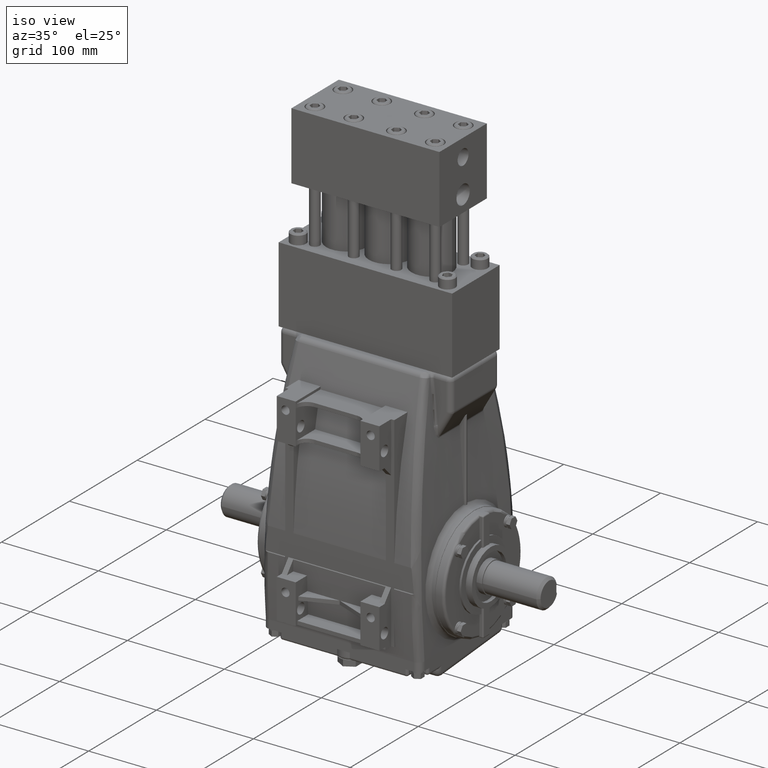
[diagram: clean part render]
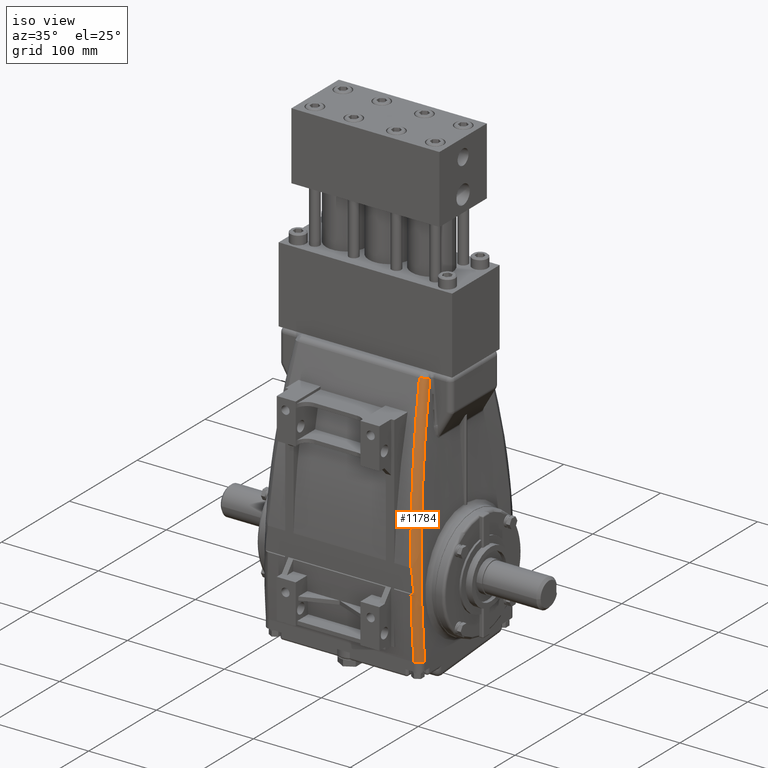
[diagram: same view with one face highlighted and labeled with its STEP entity id]
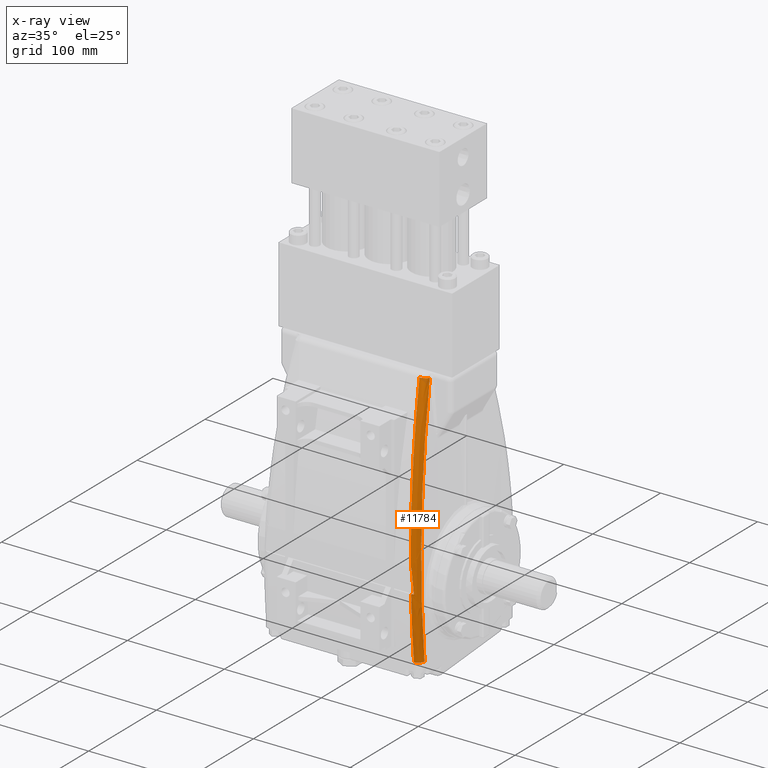
[diagram: x-ray of the same camera — body ghosted, the highlighted face saturated]
A machine part, iso view. The second image highlights one B-rep face of the part: STEP entity #11784.
The next image is the same camera in x-ray: the body ghosted, the highlighted face saturated — about 0% of this face is hidden behind the body in this view.
In plain terms, the highlighted face is a freeform B-spline surface patch.
Its self-contained STEP definition (entity closure, byte-faithful):
#9600 = VERTEX_POINT ( 'NONE', #13223 ) ;
#9601 = VERTEX_POINT ( 'NONE', #13222 ) ;
#9607 = EDGE_CURVE ( 'NONE', #9600, #9601, #13892, .T. ) ;
#10517 = EDGE_CURVE ( 'NONE', #10717, #10719, #23557, .T. ) ;
#10717 = VERTEX_POINT ( 'NONE', #25319 ) ;
#10719 = VERTEX_POINT ( 'NONE', #25284 ) ;
#10917 = EDGE_CURVE ( 'NONE', #10918, #10920, #25805, .T. ) ;
#10918 = VERTEX_POINT ( 'NONE', #25804 ) ;
#10920 = VERTEX_POINT ( 'NONE', #25698 ) ;
#11784 = ADVANCED_FACE ( 'NONE', ( #29967 ), #30471, .T. ) ;
#11785 = EDGE_LOOP ( 'NONE', ( #12116, #12117, #11797, #11798, #11802, #11805, #11807 ) ) ;
#11797 = ORIENTED_EDGE ( 'NONE', *, *, #10517, .F. ) ;
#11798 = ORIENTED_EDGE ( 'NONE', *, *, #11799, .F. ) ;
#11799 = EDGE_CURVE ( 'NONE', #11801, #10717, #30556, .T. ) ;
#11801 = VERTEX_POINT ( 'NONE', #30555 ) ;
#11802 = ORIENTED_EDGE ( 'NONE', *, *, #11803, .F. ) ;
#11803 = EDGE_CURVE ( 'NONE', #10920, #11801, #30425, .T. ) ;
#11805 = ORIENTED_EDGE ( 'NONE', *, *, #10917, .F. ) ;
#11807 = ORIENTED_EDGE ( 'NONE', *, *, #11812, .F. ) ;
#11812 = EDGE_CURVE ( 'NONE', #9601, #10918, #30303, .T. ) ;
#11993 = EDGE_CURVE ( 'NONE', #9600, #10719, #33264, .T. ) ;
#12116 = ORIENTED_EDGE ( 'NONE', *, *, #9607, .F. ) ;
#12117 = ORIENTED_EDGE ( 'NONE', *, *, #11993, .T. ) ;
#13222 = CARTESIAN_POINT ( 'NONE',  ( 3.193499999999999800, -2.509751192942778700, -2.399999999999999500 ) ) ;
#13223 = CARTESIAN_POINT ( 'NONE',  ( 2.704046829939879000, -1.502625242331364000, 7.491744050527264800 ) ) ;
#13853 = CARTESIAN_POINT ( 'NONE',  ( 3.193499999999993600, -2.593481561700054200, -1.565499124042150700 ) ) ;
#13854 = CARTESIAN_POINT ( 'NONE',  ( 3.183076591803096100, -2.634603217282111700, -0.7313685896515200700 ) ) ;
#13855 = CARTESIAN_POINT ( 'NONE',  ( 3.141418737290793600, -2.633128377971141200, 0.9361564255811264400 ) ) ;
#13856 = CARTESIAN_POINT ( 'NONE',  ( 3.110184260810215900, -2.590531106946099400, 1.769550903730976500 ) ) ;
#13857 = CARTESIAN_POINT ( 'NONE',  ( 3.063337496054983100, -2.494902369371752500, 2.706704089225087100 ) ) ;
#13858 = CARTESIAN_POINT ( 'NONE',  ( 3.057970677076191600, -2.483614389634795300, 2.810802766592697100 ) ) ;
#13859 = CARTESIAN_POINT ( 'NONE',  ( 3.046932654290149600, -2.459751961854600700, 3.018612903657775800 ) ) ;
#13860 = CARTESIAN_POINT ( 'NONE',  ( 3.041259213802154400, -2.447173009152880900, 3.122369707514371900 ) ) ;
#13865 = CARTESIAN_POINT ( 'NONE',  ( 2.783038494758693900, -1.751528852337710400, 6.695496003772602100 ) ) ;
#13867 = CARTESIAN_POINT ( 'NONE',  ( 3.023779408505123300, -2.407500563244967800, 3.433197221791580500 ) ) ;
#13872 = CARTESIAN_POINT ( 'NONE',  ( 2.704046829939879000, -1.502625242331364000, 7.491744050527264800 ) ) ;
#13887 = CARTESIAN_POINT ( 'NONE',  ( 2.853323816136693800, -1.959405315471176100, 5.889938577601141900 ) ) ;
#13889 = CARTESIAN_POINT ( 'NONE',  ( 2.944760901979866400, -2.210256697079663500, 4.667689429656478600 ) ) ;
#13891 = CARTESIAN_POINT ( 'NONE',  ( 3.193499999999999800, -2.509751192942778700, -2.399999999999999500 ) ) ;
#13892 = B_SPLINE_CURVE_WITH_KNOTS ( 'NONE', 3,
 ( #13872, #13865, #13887, #13889, #13907, #13906, #13867, #13860, #13859, #13858, #13857, #13856, #13855, #13854, #13853, #13891 ),
 .UNSPECIFIED., .F., .F.,
 ( 4, 2, 2, 2, 2, 2, 2, 4 ),
 ( 0.004800033558669481800, 0.06835354100080497100, 0.1001302947218727200, 0.1160186715824065600, 0.1239628600126735100, 0.1319070484429404600, 0.1954605558850758000, 0.2590140633272111100 ),
 .UNSPECIFIED. ) ;
#13906 = CARTESIAN_POINT ( 'NONE',  ( 3.011513569221800700, -2.378471803305660000, 3.639825103313670200 ) ) ;
#13907 = CARTESIAN_POINT ( 'NONE',  ( 2.972908197047288600, -2.283693434754658000, 4.257950036614366800 ) ) ;
#23494 = CARTESIAN_POINT ( 'NONE',  ( 2.863053751010974100, -2.836616202306000200, 1.634063837899715000 ) ) ;
#23495 = CARTESIAN_POINT ( 'NONE',  ( 2.873567475368429000, -2.852203557218572900, 1.360922891861001200 ) ) ;
#23517 = CARTESIAN_POINT ( 'NONE',  ( 2.456259133956872500, -1.744347307261818700, 7.531726676495426700 ) ) ;
#23518 = CARTESIAN_POINT ( 'NONE',  ( 2.507477750909981900, -1.907702032629347500, 7.009680192152527100 ) ) ;
#23519 = CARTESIAN_POINT ( 'NONE',  ( 2.555018213705952100, -2.053486927532073700, 6.483665112222651800 ) ) ;
#23520 = CARTESIAN_POINT ( 'NONE',  ( 2.642402105300963200, -2.310255096542662000, 5.423743314710233000 ) ) ;
#23521 = CARTESIAN_POINT ( 'NONE',  ( 2.682245816005446300, -2.421238067098342200, 4.889836554420853100 ) ) ;
#23522 = CARTESIAN_POINT ( 'NONE',  ( 2.753894724567358400, -2.608280308148269300, 3.814080173719303100 ) ) ;
#23523 = CARTESIAN_POINT ( 'NONE',  ( 2.785700205752900300, -2.684340277576066700, 3.272230721434767900 ) ) ;
#23524 = CARTESIAN_POINT ( 'NONE',  ( 2.827116124881672300, -2.771798358153222600, 2.453387379358531000 ) ) ;
#23525 = CARTESIAN_POINT ( 'NONE',  ( 2.839829740721762100, -2.796417112452694200, 2.180263263139637300 ) ) ;
#23526 = CARTESIAN_POINT ( 'NONE',  ( 2.882982963062833600, -2.863300000000000200, 1.087740777177397300 ) ) ;
#23557 = B_SPLINE_CURVE_WITH_KNOTS ( 'NONE', 3,
 ( #23526, #23495, #23494, #23525, #23524, #23523, #23522, #23521, #23520, #23519, #23518, #23517 ),
 .UNSPECIFIED., .F., .F.,
 ( 4, 2, 2, 2, 2, 4 ),
 ( 0.08859101797113067000, 0.1094214086114639600, 0.1302517992517972500, 0.1719125805324638300, 0.2135733618131304100, 0.2552341430937969900 ),
 .UNSPECIFIED. ) ;
#25284 = CARTESIAN_POINT ( 'NONE',  ( 2.456259133956872500, -1.744347307261818700, 7.531726676495426700 ) ) ;
#25319 = CARTESIAN_POINT ( 'NONE',  ( 2.882982963062833600, -2.863300000000000200, 1.087740777177397300 ) ) ;
#25698 = CARTESIAN_POINT ( 'NONE',  ( 2.911510651939654500, -2.883815207050371300, 0.1291124628865697500 ) ) ;
#25760 = CARTESIAN_POINT ( 'NONE',  ( 2.911510651939654500, -2.883815207050371300, 0.1291124628865697500 ) ) ;
#25762 = CARTESIAN_POINT ( 'NONE',  ( 2.932621533608527700, -2.885667127492276900, -0.7135331512523975800 ) ) ;
#25797 = CARTESIAN_POINT ( 'NONE',  ( 2.943290000804488700, -2.844980188101417200, -1.556569725585289700 ) ) ;
#25799 = CARTESIAN_POINT ( 'NONE',  ( 2.943496930700974200, -2.760999999999999700, -2.399999999999999500 ) ) ;
#25804 = CARTESIAN_POINT ( 'NONE',  ( 2.943496930700974200, -2.760999999999999700, -2.399999999999999500 ) ) ;
#25805 = B_SPLINE_CURVE_WITH_KNOTS ( 'NONE', 3,
 ( #25799, #25797, #25762, #25760 ),
 .UNSPECIFIED., .F., .F.,
 ( 4, 4 ),
 ( 0.0000000000000000000, 0.06422987697278752200 ),
 .UNSPECIFIED. ) ;
#29967 = FACE_OUTER_BOUND ( 'NONE', #11785, .T. ) ;
#30247 = CARTESIAN_POINT ( 'NONE',  ( 3.142453240869476500, -2.634432902609595000, 0.9074543390188838400 ) ) ;
#30250 = CARTESIAN_POINT ( 'NONE',  ( 2.933977350526876000, -2.883301317235419600, -0.7924935833529684900 ) ) ;
#30252 = CARTESIAN_POINT ( 'NONE',  ( 3.184174142632096400, -2.883513125519725500, -0.7888005587313904300 ) ) ;
#30255 = CARTESIAN_POINT ( 'NONE',  ( 3.183953531890964000, -2.633307065684438600, -0.7797741634752116700 ) ) ;
#30256 = CARTESIAN_POINT ( 'NONE',  ( 2.943980555122781800, -2.839446455007870200, -1.640053313104788300 ) ) ;
#30257 = CARTESIAN_POINT ( 'NONE',  ( 3.194186300019694600, -2.839687896974476500, -1.637759131179852300 ) ) ;
#30258 = CARTESIAN_POINT ( 'NONE',  ( 3.193981757029014100, -2.589891244365620800, -1.620947539544594700 ) ) ;
#30263 = CARTESIAN_POINT ( 'NONE',  ( 3.010446373646501700, -2.375922623642893000, 3.657580411407732200 ) ) ;
#30264 = CARTESIAN_POINT ( 'NONE',  ( 2.773371885664018200, -2.653257809598386500, 3.466968727551274400 ) ) ;
#30265 = CARTESIAN_POINT ( 'NONE',  ( 3.020991801863276600, -2.651323563629408100, 3.481100552965803900 ) ) ;
#30266 = CARTESIAN_POINT ( 'NONE',  ( 3.022946351532532500, -2.405566565197178300, 3.447593250183045700 ) ) ;
#30270 = CARTESIAN_POINT ( 'NONE',  ( 2.791142466244841200, -2.694163895834697200, 3.148390269721805800 ) ) ;
#30272 = CARTESIAN_POINT ( 'NONE',  ( 3.039078647160331500, -2.692492784244648000, 3.161871306820708900 ) ) ;
#30275 = CARTESIAN_POINT ( 'NONE',  ( 3.040761380887329100, -2.446063133188711700, 3.131415269716888000 ) ) ;
#30277 = CARTESIAN_POINT ( 'NONE',  ( 3.187154745387546000, -2.566588785082813700, -2.399999999999999500 ) ) ;
#30278 = CARTESIAN_POINT ( 'NONE',  ( 3.191889331102015800, -2.542572653472785900, -2.399999999999999500 ) ) ;
#30279 = CARTESIAN_POINT ( 'NONE',  ( 3.193499999999999300, -2.526298931570716300, -2.399999999999999500 ) ) ;
#30280 = CARTESIAN_POINT ( 'NONE',  ( 3.193499999999999800, -2.509751192942778700, -2.399999999999999500 ) ) ;
#30303 = B_SPLINE_CURVE_WITH_KNOTS ( 'NONE', 3,
 ( #30280, #30279, #30278, #30277, #30517, #30516, #30515, #30514, #30512, #30510, #30508, #30506, #30504, #30503, #30502, #30500, #30497, #30495, #30493, #30492, #30491, #30489 ),
 .UNSPECIFIED., .F., .F.,
 ( 4, 2, 2, 2, 2, 2, 2, 2, 2, 2, 4 ),
 ( 0.0000000000000000000, 0.1250000000000010000, 0.1875000000000018900, 0.2500000000000027800, 0.3750000000000023300, 0.5000000000000018900, 0.6250000000000014400, 0.6875000000000011100, 0.7500000000000008900, 0.8750000000000004400, 1.000000000000000000 ),
 .UNSPECIFIED. ) ;
#30306 = CARTESIAN_POINT ( 'NONE',  ( 3.009948465918342600, -2.863299999999999300, 0.1537133837002174800 ) ) ;
#30309 = CARTESIAN_POINT ( 'NONE',  ( 3.002669288144535400, -2.866493262237083800, 0.1498841661232826200 ) ) ;
#30310 = CARTESIAN_POINT ( 'NONE',  ( 2.995131978478193800, -2.869371634669166200, 0.1464325503487016700 ) ) ;
#30311 = CARTESIAN_POINT ( 'NONE',  ( 2.979490555019454600, -2.874436946797307900, 0.1403584540817287800 ) ) ;
#30312 = CARTESIAN_POINT ( 'NONE',  ( 2.971325611357137100, -2.876636149985339700, 0.1377212677570169000 ) ) ;
#30313 = CARTESIAN_POINT ( 'NONE',  ( 2.946336680374088200, -2.881958668672076800, 0.1313387408626945100 ) ) ;
#30315 = CARTESIAN_POINT ( 'NONE',  ( 2.929190704705780100, -2.883815207050370000, 0.1291124628865669100 ) ) ;
#30317 = CARTESIAN_POINT ( 'NONE',  ( 2.911510651939654500, -2.883815207050371300, 0.1291124628865697500 ) ) ;
#30323 = CARTESIAN_POINT ( 'NONE',  ( 2.882982963062833600, -2.863300000000000200, 1.087740777177397300 ) ) ;
#30324 = CARTESIAN_POINT ( 'NONE',  ( 2.885507796100179200, -2.863299999999999300, 1.087740777177445700 ) ) ;
#30353 = CARTESIAN_POINT ( 'NONE',  ( 2.693086776142867800, -2.449824825028169800, 4.729310587670420700 ) ) ;
#30354 = CARTESIAN_POINT ( 'NONE',  ( 2.939256996119669300, -2.446724622798570200, 4.745775107694226100 ) ) ;
#30355 = CARTESIAN_POINT ( 'NONE',  ( 2.942460428312356300, -2.204170185070802200, 4.700423409217816800 ) ) ;
#30357 = CARTESIAN_POINT ( 'NONE',  ( 2.721672529368425900, -2.525557560977079500, 4.310911669710444400 ) ) ;
#30359 = CARTESIAN_POINT ( 'NONE',  ( 2.968364467648711500, -2.522869750408386100, 4.326588434894470800 ) ) ;
#30360 = CARTESIAN_POINT ( 'NONE',  ( 2.971117681758314300, -2.279144746886598400, 4.285177112241438400 ) ) ;
#30362 = CARTESIAN_POINT ( 'NONE',  ( 2.760903095392790400, -2.623314096126855500, 3.678550147261659300 ) ) ;
#30363 = CARTESIAN_POINT ( 'NONE',  ( 3.008297473173680500, -2.621191699968948600, 3.693135440675285900 ) ) ;
#30365 = CARTESIAN_POINT ( 'NONE',  ( 2.449618564285145800, -1.723135431429573000, 7.599180032179245500 ) ) ;
#30366 = CARTESIAN_POINT ( 'NONE',  ( 2.691156658650823100, -1.716210534684240700, 7.621092612090662600 ) ) ;
#30368 = CARTESIAN_POINT ( 'NONE',  ( 2.698383239872317300, -1.484755810481894100, 7.548668489373326900 ) ) ;
#30371 = CARTESIAN_POINT ( 'NONE',  ( 2.529226055964800800, -1.977814818443344600, 6.793293298418043400 ) ) ;
#30373 = CARTESIAN_POINT ( 'NONE',  ( 2.772494490019180400, -1.972775028733998900, 6.811828951338529900 ) ) ;
#30374 = CARTESIAN_POINT ( 'NONE',  ( 2.778189856191273200, -1.736885574046451300, 6.748854027072887600 ) ) ;
#30375 = CARTESIAN_POINT ( 'NONE',  ( 2.600351910854995300, -2.191484305632123200, 5.975162014368245300 ) ) ;
#30376 = CARTESIAN_POINT ( 'NONE',  ( 2.844879458244535800, -2.187204970975872100, 5.992780983601291700 ) ) ;
#30378 = CARTESIAN_POINT ( 'NONE',  ( 2.849493609272967900, -1.948415959290631600, 5.936887389644126300 ) ) ;
#30398 = CARTESIAN_POINT ( 'NONE',  ( 2.887892977641161300, -2.863299999999999300, 1.086770855866712000 ) ) ;
#30400 = CARTESIAN_POINT ( 'NONE',  ( 2.892019453237866200, -2.863299999999999300, 1.084027628534487600 ) ) ;
#30402 = CARTESIAN_POINT ( 'NONE',  ( 2.893822041563788100, -2.863299999999999300, 1.082262226549241000 ) ) ;
#30405 = CARTESIAN_POINT ( 'NONE',  ( 2.898700148503726000, -2.863299999999999300, 1.076584567947173100 ) ) ;
#30406 = CARTESIAN_POINT ( 'NONE',  ( 2.901264774069934700, -2.863299999999999300, 1.072338622362129000 ) ) ;
#30407 = CARTESIAN_POINT ( 'NONE',  ( 2.908271470978583700, -2.863300000000000600, 1.059172708758751000 ) ) ;
#30408 = CARTESIAN_POINT ( 'NONE',  ( 2.911885568915081500, -2.863299999999999300, 1.049888962229390100 ) ) ;
#30409 = CARTESIAN_POINT ( 'NONE',  ( 2.921693998378060100, -2.863299999999999300, 1.021746841351971000 ) ) ;
#30410 = CARTESIAN_POINT ( 'NONE',  ( 2.926718278849785200, -2.863300000000000200, 1.002487773883604900 ) ) ;
#30411 = CARTESIAN_POINT ( 'NONE',  ( 2.935765755074407800, -2.863299999999999300, 0.9638023606166239400 ) ) ;
#30413 = CARTESIAN_POINT ( 'NONE',  ( 2.939699628835416700, -2.863300000000000200, 0.9443206152120829900 ) ) ;
#30415 = CARTESIAN_POINT ( 'NONE',  ( 2.946908349175491700, -2.863299999999999300, 0.9052509757540094800 ) ) ;
#30417 = CARTESIAN_POINT ( 'NONE',  ( 2.950172762960653100, -2.863299999999999300, 0.8856499330804070700 ) ) ;
#30419 = CARTESIAN_POINT ( 'NONE',  ( 2.959273727649194700, -2.863299999999999300, 0.8267555665228261100 ) ) ;
#30420 = CARTESIAN_POINT ( 'NONE',  ( 2.964433510054997400, -2.863299999999999300, 0.7873518140003793500 ) ) ;
#30421 = CARTESIAN_POINT ( 'NONE',  ( 2.973673843554477200, -2.863299999999998400, 0.7084354289188815600 ) ) ;
#30422 = CARTESIAN_POINT ( 'NONE',  ( 2.977738828981232100, -2.863300000000000200, 0.6689087730254834600 ) ) ;
#30423 = CARTESIAN_POINT ( 'NONE',  ( 2.988732282202554400, -2.863300000000000200, 0.5502370600253274600 ) ) ;
#30424 = CARTESIAN_POINT ( 'NONE',  ( 2.994477666663438500, -2.863300000000000200, 0.4710249441178591700 ) ) ;
#30425 = B_SPLINE_CURVE_WITH_KNOTS ( 'NONE', 3,
 ( #30317, #30315, #30313, #30312, #30311, #30310, #30309, #30306 ),
 .UNSPECIFIED., .F., .F.,
 ( 4, 2, 2, 4 ),
 ( 8.673617379884037400E-019, 0.001324920707172727500, 0.001987381060759106400, 0.002649841414345485000 ),
 .UNSPECIFIED. ) ;
#30436 = CARTESIAN_POINT ( 'NONE',  ( 3.061924578484984200, -2.742014757719802600, 2.734445251402034800 ) ) ;
#30438 = CARTESIAN_POINT ( 'NONE',  ( 3.063264918049155100, -2.494755258709951300, 2.708166221211408600 ) ) ;
#30440 = CARTESIAN_POINT ( 'NONE',  ( 2.861187860299319500, -2.841729187926680800, 1.760024504522476900 ) ) ;
#30441 = CARTESIAN_POINT ( 'NONE',  ( 3.110410201881083300, -2.841213660065714700, 1.769248944565135400 ) ) ;
#30442 = CARTESIAN_POINT ( 'NONE',  ( 3.110981976699698700, -2.592151122431640700, 1.753510791266808600 ) ) ;
#30445 = CARTESIAN_POINT ( 'NONE',  ( 2.892580603326366800, -2.884438539188789000, 0.9075446468310227600 ) ) ;
#30447 = CARTESIAN_POINT ( 'NONE',  ( 3.142258275958428500, -2.884234655473078700, 0.9154380343319548100 ) ) ;
#30452 = CARTESIAN_POINT ( 'NONE',  ( 2.796910554197496800, -2.707130918372310500, 3.041996369524478700 ) ) ;
#30453 = CARTESIAN_POINT ( 'NONE',  ( 3.044949746598746300, -2.705546846476556900, 3.055239537825251700 ) ) ;
#30454 = CARTESIAN_POINT ( 'NONE',  ( 3.046543896330340800, -2.458900340516771500, 3.025823043780106600 ) ) ;
#30456 = CARTESIAN_POINT ( 'NONE',  ( 2.808132372692014700, -2.731719351367772700, 2.828803590972446700 ) ) ;
#30457 = CARTESIAN_POINT ( 'NONE',  ( 3.056370931697216100, -2.730304370573542400, 2.841563728857893900 ) ) ;
#30458 = CARTESIAN_POINT ( 'NONE',  ( 3.057793783448031100, -2.483242614267979300, 2.814236665243734100 ) ) ;
#30460 = CARTESIAN_POINT ( 'NONE',  ( 2.813589856735503300, -2.743348416488595700, 2.721927841968372300 ) ) ;
#30471 =( BOUNDED_SURFACE ( )  B_SPLINE_SURFACE ( 3, 2, ( 
 ( #30542, #30541, #30540 ),
 ( #30258, #30257, #30256 ),
 ( #30255, #30252, #30250 ),
 ( #30247, #30447, #30445 ),
 ( #30442, #30441, #30440 ),
 ( #30438, #30436, #30460 ),
 ( #30458, #30457, #30456 ),
 ( #30454, #30453, #30452 ),
 ( #30275, #30272, #30270 ),
 ( #30266, #30265, #30264 ),
 ( #30263, #30363, #30362 ),
 ( #30360, #30359, #30357 ),
 ( #30355, #30354, #30353 ),
 ( #30378, #30376, #30375 ),
 ( #30374, #30373, #30371 ),
 ( #30368, #30366, #30365 ) ),
 .UNSPECIFIED., .F., .F., .T. ) 
 B_SPLINE_SURFACE_WITH_KNOTS ( ( 4, 2, 2, 2, 2, 2, 2, 4 ),
 ( 3, 3 ),
 ( 0.07567779130758195400, 0.1397032468605040000, 0.2037287024134260800, 0.2117318843575413700, 0.2197350663016566200, 0.2357414301898871400, 0.2677541579663481600, 0.3317796135192702100 ),
 ( 0.0000000000000000000, 1.000000000000000000 ),
 .UNSPECIFIED. ) 
 GEOMETRIC_REPRESENTATION_ITEM ( )  RATIONAL_B_SPLINE_SURFACE ( (
 ( 1.000000000000000000, 0.7071283619413468700, 1.000000000000000000),
 ( 1.000000000000000000, 0.7068178605973327600, 1.000000000000000000),
 ( 1.000000000000000000, 0.7068070340585174100, 1.000000000000000000),
 ( 1.000000000000000000, 0.7073948972586846500, 1.000000000000000000),
 ( 1.000000000000000000, 0.7079936450170187800, 1.000000000000000000),
 ( 1.000000000000000000, 0.7090136454285039800, 1.000000000000000000),
 ( 1.000000000000000000, 0.7091317507880232600, 1.000000000000000000),
 ( 1.000000000000000000, 0.7093768039227144100, 1.000000000000000000),
 ( 1.000000000000000000, 0.7095038317877322400, 1.000000000000000000),
 ( 1.000000000000000000, 0.7098982406744860400, 1.000000000000000000),
 ( 1.000000000000000000, 0.7101789468283334900, 1.000000000000000000),
 ( 1.000000000000000000, 0.7110729434141249700, 1.000000000000000000),
 ( 1.000000000000000000, 0.7117381107574561900, 1.000000000000000000),
 ( 1.000000000000000000, 0.7139298089224069800, 1.000000000000000000),
 ( 1.000000000000000000, 0.7156525445711677800, 1.000000000000000000),
 ( 1.000000000000000000, 0.7176067907711467500, 1.000000000000000000) ) ) 
 REPRESENTATION_ITEM ( '' )  SURFACE ( )  );
#30489 = CARTESIAN_POINT ( 'NONE',  ( 2.943496930700974200, -2.760999999999999700, -2.399999999999999500 ) ) ;
#30491 = CARTESIAN_POINT ( 'NONE',  ( 2.960047015463430400, -2.760999999999998800, -2.399999999999999500 ) ) ;
#30492 = CARTESIAN_POINT ( 'NONE',  ( 2.976418488570530900, -2.759364545385790900, -2.399999999999999500 ) ) ;
#30493 = CARTESIAN_POINT ( 'NONE',  ( 3.008806427465623700, -2.752843017618793000, -2.399999999999999500 ) ) ;
#30495 = CARTESIAN_POINT ( 'NONE',  ( 3.024528258181857300, -2.748000788384666700, -2.399999999999999500 ) ) ;
#30497 = CARTESIAN_POINT ( 'NONE',  ( 3.047102561564571500, -2.738556804818876900, -2.399999999999999500 ) ) ;
#30500 = CARTESIAN_POINT ( 'NONE',  ( 3.054476589611083300, -2.735039027639107900, -2.399999999999999500 ) ) ;
#30502 = CARTESIAN_POINT ( 'NONE',  ( 3.068918272238233800, -2.727251902468218200, -2.399999999999999500 ) ) ;
#30503 = CARTESIAN_POINT ( 'NONE',  ( 3.076023293121571200, -2.722955118297732300, -2.399999999999999500 ) ) ;
#30504 = CARTESIAN_POINT ( 'NONE',  ( 3.096486096904059100, -2.709149576688134200, -2.399999999999999500 ) ) ;
#30506 = CARTESIAN_POINT ( 'NONE',  ( 3.109049730992273100, -2.698731501751680200, -2.399999999999999500 ) ) ;
#30508 = CARTESIAN_POINT ( 'NONE',  ( 3.132070051888666800, -2.675522366845675600, -2.399999999999999500 ) ) ;
#30510 = CARTESIAN_POINT ( 'NONE',  ( 3.142598653401237600, -2.662583506947305600, -2.399999999999999500 ) ) ;
#30512 = CARTESIAN_POINT ( 'NONE',  ( 3.160665803009893500, -2.635296696922876600, -2.399999999999999500 ) ) ;
#30514 = CARTESIAN_POINT ( 'NONE',  ( 3.168310783728827100, -2.620883649344119400, -2.399999999999999500 ) ) ;
#30515 = CARTESIAN_POINT ( 'NONE',  ( 3.177677535015232200, -2.598099732405665800, -2.399999999999999500 ) ) ;
#30516 = CARTESIAN_POINT ( 'NONE',  ( 3.180455947973292100, -2.590270753129145600, -2.399999999999999500 ) ) ;
#30517 = CARTESIAN_POINT ( 'NONE',  ( 3.185187266368914500, -2.574527934977060000, -2.399999999999999500 ) ) ;
#30540 = CARTESIAN_POINT ( 'NONE',  ( 2.943482273299926600, -2.752374221571391100, -2.485150213254076600 ) ) ;
#30541 = CARTESIAN_POINT ( 'NONE',  ( 3.193466969764102700, -2.752359042725816900, -2.485297534562334500 ) ) ;
#30542 = CARTESIAN_POINT ( 'NONE',  ( 3.193482228960893300, -2.503690704823621000, -2.459676685779207600 ) ) ;
#30547 = CARTESIAN_POINT ( 'NONE',  ( 3.003799906963907400, -2.863299999999999300, 0.3124670052610845100 ) ) ;
#30548 = CARTESIAN_POINT ( 'NONE',  ( 3.007353671512838800, -2.863300000000000600, 0.2331197585499995800 ) ) ;
#30550 = CARTESIAN_POINT ( 'NONE',  ( 3.009948465918342600, -2.863299999999999300, 0.1537133837002174800 ) ) ;
#30555 = CARTESIAN_POINT ( 'NONE',  ( 3.009948465918342600, -2.863299999999999300, 0.1537133837002174800 ) ) ;
#30556 = B_SPLINE_CURVE_WITH_KNOTS ( 'NONE', 3,
 ( #30550, #30548, #30547, #30424, #30423, #30422, #30421, #30420, #30419, #30417, #30415, #30413, #30411, #30410, #30409, #30408, #30407, #30406, #30405, #30402, #30400, #30398, #30324, #30323 ),
 .UNSPECIFIED., .F., .F.,
 ( 4, 2, 2, 2, 2, 2, 2, 2, 2, 2, 2, 4 ),
 ( 3.469446951953614200E-018, 0.006051464954295333200, 0.01210292990859066300, 0.01512866238573833100, 0.01815439486288600000, 0.01966726110145983200, 0.02118012734003366800, 0.02269299357860750400, 0.02344942669789442200, 0.02382764325753787200, 0.02401675153735960100, 0.02420585981718132900 ),
 .UNSPECIFIED. ) ;
#32555 = CARTESIAN_POINT ( 'NONE',  ( 2.641096457638313100, -1.660386977078266000, 7.525508755744061400 ) ) ;
#32556 = CARTESIAN_POINT ( 'NONE',  ( 2.651536412247590000, -1.648026729777714900, 7.523293428331046000 ) ) ;
#32557 = CARTESIAN_POINT ( 'NONE',  ( 2.669532999141109600, -1.622066922646811600, 7.518334497106816400 ) ) ;
#32558 = CARTESIAN_POINT ( 'NONE',  ( 2.677228446995678200, -1.608352743860780100, 7.515573618036711400 ) ) ;
#32585 = CARTESIAN_POINT ( 'NONE',  ( 2.456259133956872500, -1.744347307261818700, 7.531726676495426700 ) ) ;
#32586 = CARTESIAN_POINT ( 'NONE',  ( 2.472424315002109900, -1.743983424977451300, 7.532889565826258700 ) ) ;
#32587 = CARTESIAN_POINT ( 'NONE',  ( 2.488497025039244200, -1.742090813009896900, 7.533671411764143700 ) ) ;
#32588 = CARTESIAN_POINT ( 'NONE',  ( 2.520111474314498800, -1.735309680620376500, 7.534461557316110900 ) ) ;
#32589 = CARTESIAN_POINT ( 'NONE',  ( 2.535382569578387800, -1.730490419678572200, 7.534465832640735900 ) ) ;
#32590 = CARTESIAN_POINT ( 'NONE',  ( 2.564884836654132800, -1.718080679632454100, 7.533716269737246800 ) ) ;
#32591 = CARTESIAN_POINT ( 'NONE',  ( 2.579256144378099200, -1.710381509576129000, 7.532946706274346500 ) ) ;
#32592 = CARTESIAN_POINT ( 'NONE',  ( 2.605933816305883200, -1.692667841284936700, 7.530681106562937500 ) ) ;
#32593 = CARTESIAN_POINT ( 'NONE',  ( 2.618300988158743300, -1.682667865695936600, 7.529193332298510700 ) ) ;
#32594 = CARTESIAN_POINT ( 'NONE',  ( 2.694553591536225800, -1.564241409757553700, 7.506112550187912000 ) ) ;
#32640 = CARTESIAN_POINT ( 'NONE',  ( 2.686780728435808700, -1.586659560192247300, 7.511001575167179000 ) ) ;
#32641 = CARTESIAN_POINT ( 'NONE',  ( 2.689637337361232100, -1.579209173819008800, 7.509398182625338000 ) ) ;
#33257 = CARTESIAN_POINT ( 'NONE',  ( 2.696630528734592900, -1.556692118417181100, 7.504423837646530000 ) ) ;
#33258 = CARTESIAN_POINT ( 'NONE',  ( 2.701741608846622600, -1.533852140404292600, 7.499222735431661000 ) ) ;
#33259 = CARTESIAN_POINT ( 'NONE',  ( 2.703666617142802800, -1.518371168877447100, 7.495576653596486100 ) ) ;
#33260 = CARTESIAN_POINT ( 'NONE',  ( 2.704046829939879000, -1.502625242331364000, 7.491744050527264800 ) ) ;
#33264 = B_SPLINE_CURVE_WITH_KNOTS ( 'NONE', 3,
 ( #33260, #33259, #33258, #33257, #32594, #32641, #32640, #32558, #32557, #32556, #32555, #32593, #32592, #32591, #32590, #32589, #32588, #32587, #32586, #32585 ),
 .UNSPECIFIED., .F., .F.,
 ( 4, 2, 2, 2, 2, 2, 2, 2, 2, 4 ),
 ( 1.186043520019580500E-015, 0.001217646084869436300, 0.001826469127303561600, 0.002435292169737686500, 0.003652938254605939300, 0.004870584339474192500, 0.006088230424342445800, 0.007305876509210697300, 0.008523522594078951400, 0.009741168678947203700 ),
 .UNSPECIFIED. ) ;